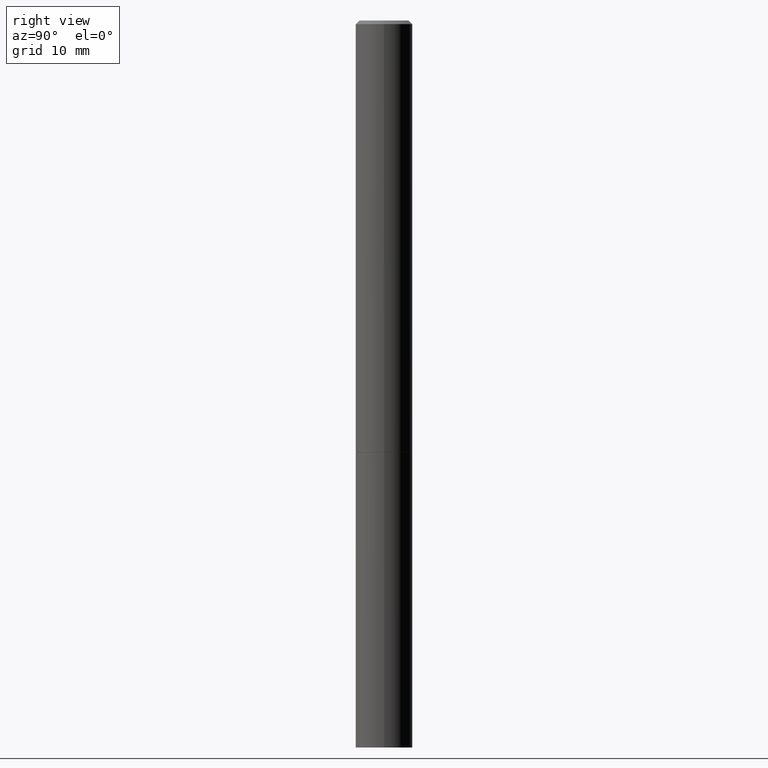
[diagram: clean part render]
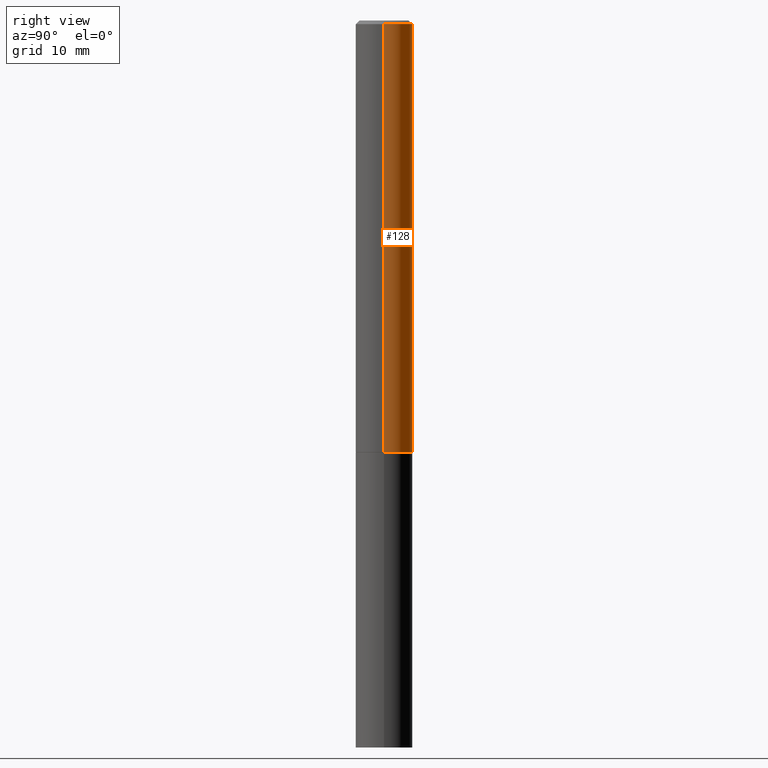
[diagram: same view with one face highlighted and labeled with its STEP entity id]
A machine part, right view. The second image highlights one B-rep face of the part: STEP entity #128.
In plain terms, the highlighted cylindrical surface (edge-blend (fillet) strip) has radius 3.9687 mm, axis along (-0, 0, 1).
Its self-contained STEP definition (entity closure, byte-faithful):
#11 = LINE ( 'NONE', #160, #216 ) ;
#43 = ORIENTED_EDGE ( 'NONE', *, *, #332, .T. ) ;
#62 = AXIS2_PLACEMENT_3D ( 'NONE', #123, #373, #161 ) ;
#64 = EDGE_CURVE ( 'NONE', #132, #138, #288, .T. ) ;
#76 = CARTESIAN_POINT ( 'NONE',  ( -0.1562499999999998612, 1.110223024625155554E-15, -7.685836078523284153E-30 ) ) ;
#106 = VECTOR ( 'NONE', #315, 39.37007874015748143 ) ;
#109 = CARTESIAN_POINT ( 'NONE',  ( 5.805542945883513814E-29, -8.288776698413627111E-15, -2.373999999999999666 ) ) ;
#123 = CARTESIAN_POINT ( 'NONE',  ( 0.000000000000000000, 0.000000000000000000, 0.000000000000000000 ) ) ;
#126 = CYLINDRICAL_SURFACE ( 'NONE', #62, 0.1562499999999998612 ) ;
#128 = ADVANCED_FACE ( 'NONE', ( #244 ), #126, .T. ) ;
#131 = ORIENTED_EDGE ( 'NONE', *, *, #64, .F. ) ;
#132 = VERTEX_POINT ( 'NONE', #283 ) ;
#138 = VERTEX_POINT ( 'NONE', #191 ) ;
#144 = EDGE_CURVE ( 'NONE', #245, #132, #11, .T. ) ;
#149 = ORIENTED_EDGE ( 'NONE', *, *, #144, .F. ) ;
#160 = CARTESIAN_POINT ( 'NONE',  ( 0.1562499999999998612, -1.091087918388478187E-15, 7.619026212181143371E-30 ) ) ;
#161 = DIRECTION ( 'NONE',  ( 1.000000000000000000, -6.982962677686266711E-15, 4.876176775795936353E-29 ) ) ;
#185 = DIRECTION ( 'NONE',  ( -2.445468806185136877E-29, 3.491481338843145188E-15, 1.000000000000000000 ) ) ;
#191 = CARTESIAN_POINT ( 'NONE',  ( -0.1562499999999997224, 1.021258291611614298E-15, -0.02000000000000003511 ) ) ;
#193 = CARTESIAN_POINT ( 'NONE',  ( 4.890937612370281041E-31, -6.982962677686302702E-17, -0.02000000000000003511 ) ) ;
#195 = DIRECTION ( 'NONE',  ( -2.445468806185136597E-29, 3.491481338843145583E-15, 1.000000000000000000 ) ) ;
#196 = EDGE_CURVE ( 'NONE', #203, #138, #312, .T. ) ;
#203 = VERTEX_POINT ( 'NONE', #250 ) ;
#210 = DIRECTION ( 'NONE',  ( 1.000000000000000000, -6.982962677686262766E-15, 0.000000000000000000 ) ) ;
#216 = VECTOR ( 'NONE', #185, 39.37007874015748143 ) ;
#244 = FACE_OUTER_BOUND ( 'NONE', #327, .T. ) ;
#245 = VERTEX_POINT ( 'NONE', #341 ) ;
#250 = CARTESIAN_POINT ( 'NONE',  ( -0.1562500000000000000, -3.069080137970085114E-15, -2.373999999999999666 ) ) ;
#253 = DIRECTION ( 'NONE',  ( 1.000000000000000000, -6.982962677686267499E-15, 0.000000000000000000 ) ) ;
#258 = CIRCLE ( 'NONE', #302, 0.1562500000000000000 ) ;
#259 = ORIENTED_EDGE ( 'NONE', *, *, #196, .T. ) ;
#283 = CARTESIAN_POINT ( 'NONE',  ( 0.1562499999999997224, -1.141782438928662935E-15, -0.02000000000000003511 ) ) ;
#288 = CIRCLE ( 'NONE', #344, 0.1562499999999997224 ) ;
#302 = AXIS2_PLACEMENT_3D ( 'NONE', #109, #387, #210 ) ;
#312 = LINE ( 'NONE', #76, #106 ) ;
#315 = DIRECTION ( 'NONE',  ( -2.445468806185136877E-29, 3.491481338843145188E-15, 1.000000000000000000 ) ) ;
#327 = EDGE_LOOP ( 'NONE', ( #43, #259, #131, #149 ) ) ;
#332 = EDGE_CURVE ( 'NONE', #245, #203, #258, .T. ) ;
#341 = CARTESIAN_POINT ( 'NONE',  ( 0.1562500000000000000, -9.379864616802105495E-15, -2.373999999999999666 ) ) ;
#344 = AXIS2_PLACEMENT_3D ( 'NONE', #193, #195, #253 ) ;
#373 = DIRECTION ( 'NONE',  ( -2.445468806185136597E-29, 3.491481338843145583E-15, 1.000000000000000000 ) ) ;
#387 = DIRECTION ( 'NONE',  ( -2.445468806185136597E-29, 3.491481338843145583E-15, 1.000000000000000000 ) ) ;